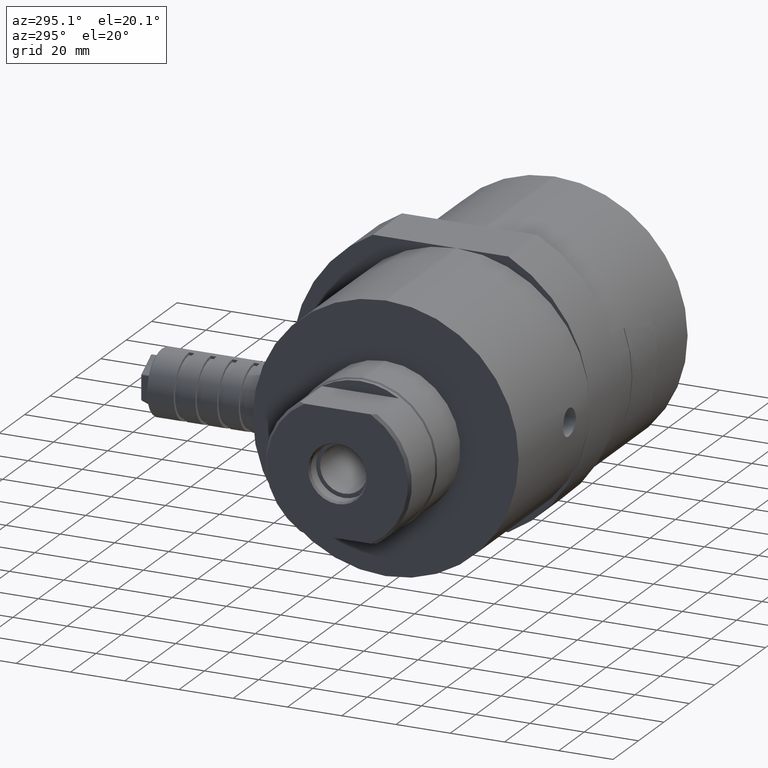
[diagram: clean part render]
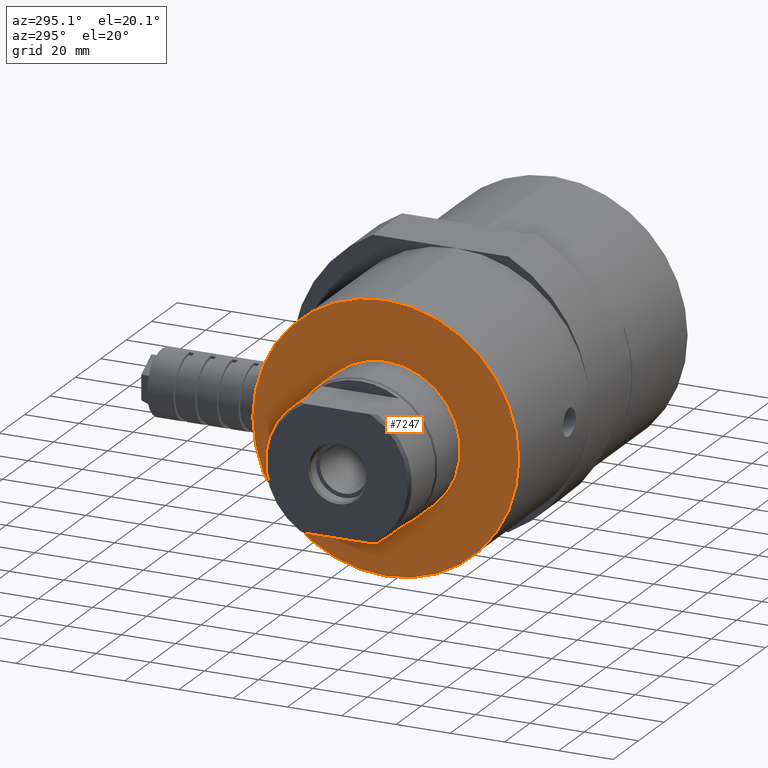
[diagram: same view with one face highlighted and labeled with its STEP entity id]
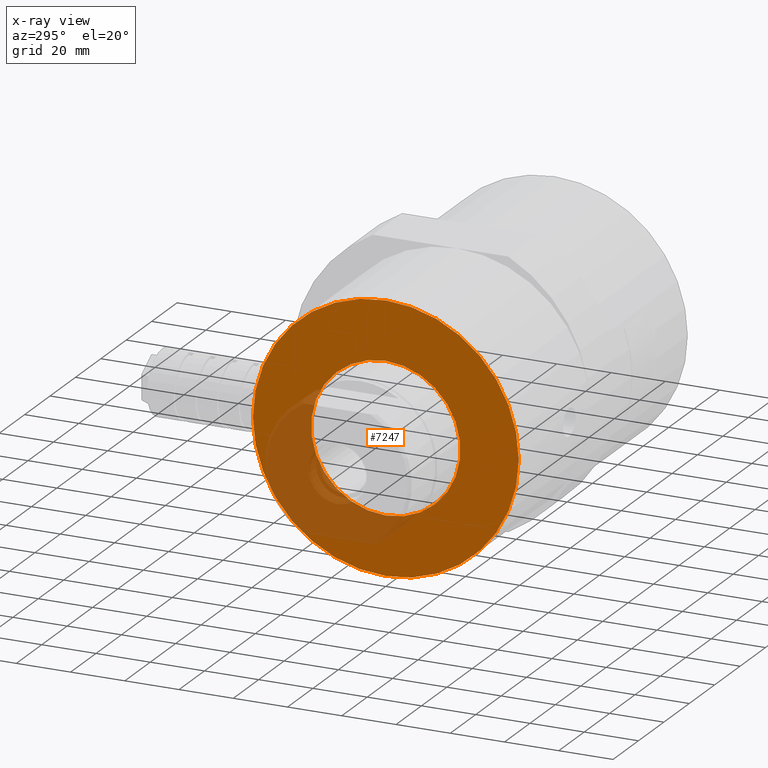
[diagram: x-ray of the same camera — body ghosted, the highlighted face saturated]
A machine part, auxiliary view. The second image highlights one B-rep face of the part: STEP entity #7247.
The next image is the same camera in x-ray: the body ghosted, the highlighted face saturated — about 22% of this face is hidden behind the body in this view.
In plain terms, the highlighted planar face has unit normal (1, 0, 0).
Its self-contained STEP definition (entity closure, byte-faithful):
#333 = CARTESIAN_POINT ( 'NONE',  ( 0.0000000000000000000, 3.367778697655221300E-015, -27.50000000000000000 ) ) ;
#1040 = DIRECTION ( 'NONE',  ( -1.000000000000000000, 0.0000000000000000000, 0.0000000000000000000 ) ) ;
#1189 = PLANE ( 'NONE',  #22343 ) ;
#2787 = DIRECTION ( 'NONE',  ( 0.0000000000000000000, 0.0000000000000000000, 1.000000000000000000 ) ) ;
#3280 = ORIENTED_EDGE ( 'NONE', *, *, #7067, .F. ) ;
#4278 = EDGE_LOOP ( 'NONE', ( #9346, #9087 ) ) ;
#4447 = CARTESIAN_POINT ( 'NONE',  ( 0.0000000000000000000, 0.0000000000000000000, 0.0000000000000000000 ) ) ;
#4584 = ORIENTED_EDGE ( 'NONE', *, *, #6692, .F. ) ;
#4794 = VERTEX_POINT ( 'NONE', #8953 ) ;
#6632 = CARTESIAN_POINT ( 'NONE',  ( 0.0000000000000000000, 6.000000000000000000, 0.0000000000000000000 ) ) ;
#6692 = EDGE_CURVE ( 'NONE', #12232, #20012, #10456, .T. ) ;
#6827 = AXIS2_PLACEMENT_3D ( 'NONE', #4447, #1040, #2787 ) ;
#7067 = EDGE_CURVE ( 'NONE', #20012, #12232, #16984, .T. ) ;
#7194 = FACE_BOUND ( 'NONE', #12563, .T. ) ;
#7247 = ADVANCED_FACE ( 'NONE', ( #13167, #7194 ), #1189, .F. ) ;
#8246 = CIRCLE ( 'NONE', #11522, 49.00000000000000000 ) ;
#8369 = DIRECTION ( 'NONE',  ( -1.000000000000000000, 0.0000000000000000000, 0.0000000000000000000 ) ) ;
#8953 = CARTESIAN_POINT ( 'NONE',  ( 1.469527624586851900E-015, 0.0000000000000000000, 49.00000000000000000 ) ) ;
#8963 = EDGE_CURVE ( 'NONE', #4794, #13635, #21772, .T. ) ;
#9008 = CARTESIAN_POINT ( 'NONE',  ( 1.469527624586851900E-015, 6.000769315822030900E-015, -49.00000000000000000 ) ) ;
#9016 = CARTESIAN_POINT ( 'NONE',  ( 1.469527624586851900E-015, 0.0000000000000000000, 0.0000000000000000000 ) ) ;
#9087 = ORIENTED_EDGE ( 'NONE', *, *, #9505, .T. ) ;
#9246 = DIRECTION ( 'NONE',  ( 0.0000000000000000000, 0.0000000000000000000, 1.000000000000000000 ) ) ;
#9346 = ORIENTED_EDGE ( 'NONE', *, *, #8963, .T. ) ;
#9353 = DIRECTION ( 'NONE',  ( 0.0000000000000000000, 0.0000000000000000000, 1.000000000000000000 ) ) ;
#9505 = EDGE_CURVE ( 'NONE', #13635, #4794, #8246, .T. ) ;
#10456 = CIRCLE ( 'NONE', #6827, 27.50000000000000000 ) ;
#11522 = AXIS2_PLACEMENT_3D ( 'NONE', #18013, #19415, #9353 ) ;
#12232 = VERTEX_POINT ( 'NONE', #15855 ) ;
#12563 = EDGE_LOOP ( 'NONE', ( #4584, #3280 ) ) ;
#13167 = FACE_OUTER_BOUND ( 'NONE', #4278, .T. ) ;
#13285 = CARTESIAN_POINT ( 'NONE',  ( 0.0000000000000000000, 0.0000000000000000000, 0.0000000000000000000 ) ) ;
#13517 = AXIS2_PLACEMENT_3D ( 'NONE', #13285, #8369, #22202 ) ;
#13621 = DIRECTION ( 'NONE',  ( 1.000000000000000000, 0.0000000000000000000, 0.0000000000000000000 ) ) ;
#13635 = VERTEX_POINT ( 'NONE', #9008 ) ;
#15855 = CARTESIAN_POINT ( 'NONE',  ( 0.0000000000000000000, 0.0000000000000000000, 27.50000000000000000 ) ) ;
#16984 = CIRCLE ( 'NONE', #13517, 27.50000000000000000 ) ;
#17614 = AXIS2_PLACEMENT_3D ( 'NONE', #9016, #21112, #9246 ) ;
#18013 = CARTESIAN_POINT ( 'NONE',  ( 1.469527624586851900E-015, 0.0000000000000000000, 0.0000000000000000000 ) ) ;
#19415 = DIRECTION ( 'NONE',  ( -1.000000000000000000, 0.0000000000000000000, 0.0000000000000000000 ) ) ;
#20012 = VERTEX_POINT ( 'NONE', #333 ) ;
#20319 = DIRECTION ( 'NONE',  ( 0.0000000000000000000, 0.0000000000000000000, -1.000000000000000000 ) ) ;
#21112 = DIRECTION ( 'NONE',  ( -1.000000000000000000, 0.0000000000000000000, 0.0000000000000000000 ) ) ;
#21772 = CIRCLE ( 'NONE', #17614, 49.00000000000000000 ) ;
#22202 = DIRECTION ( 'NONE',  ( 0.0000000000000000000, 0.0000000000000000000, 1.000000000000000000 ) ) ;
#22343 = AXIS2_PLACEMENT_3D ( 'NONE', #6632, #13621, #20319 ) ;